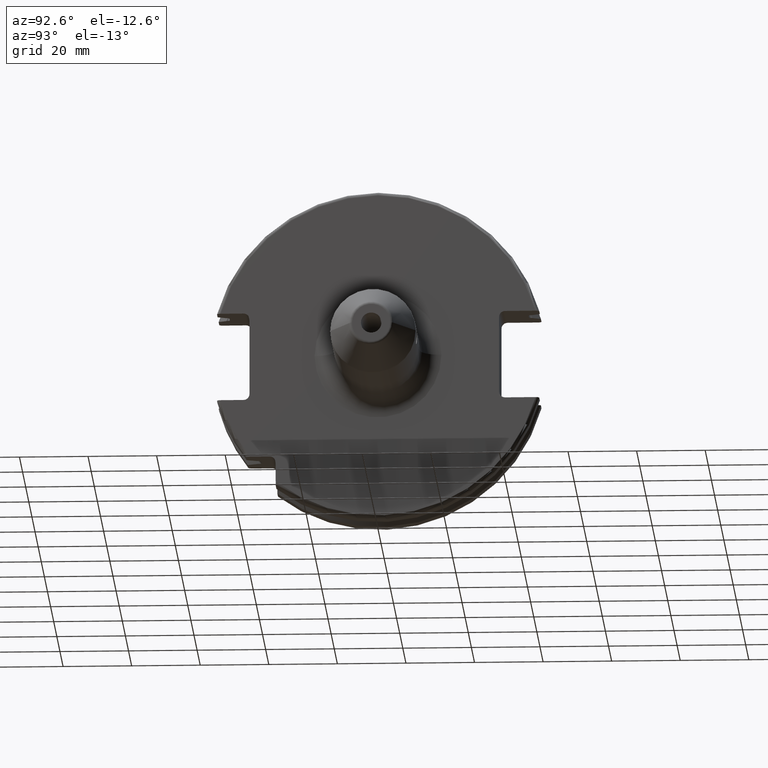
[diagram: clean part render]
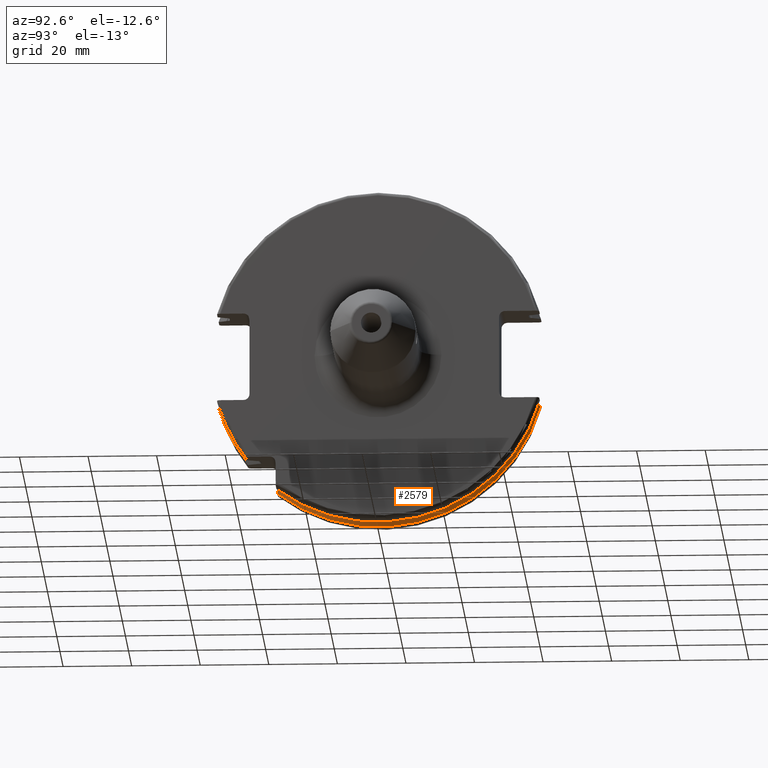
[diagram: same view with one face highlighted and labeled with its STEP entity id]
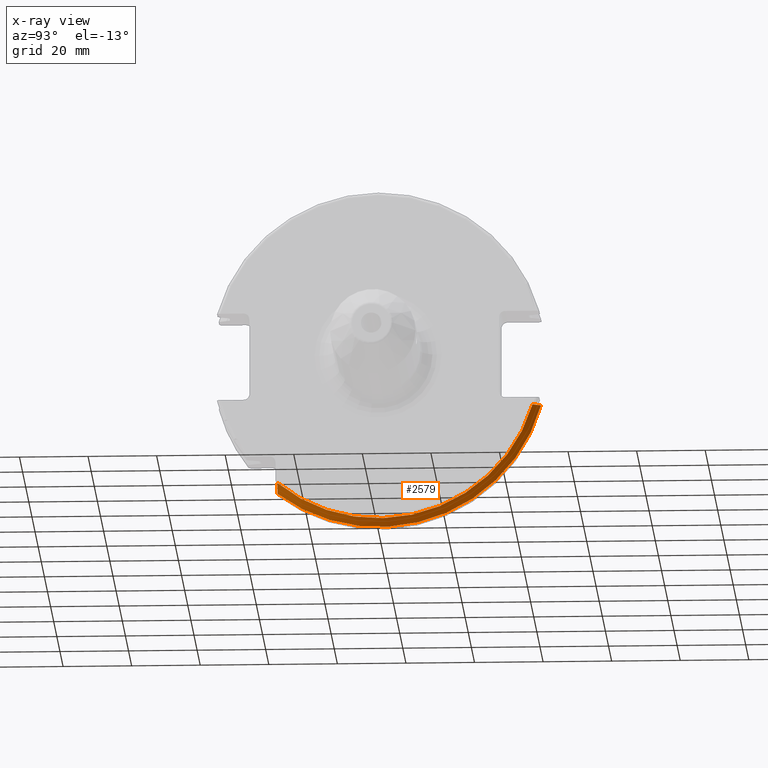
[diagram: x-ray of the same camera — body ghosted, the highlighted face saturated]
A machine part, auxiliary view. The second image highlights one B-rep face of the part: STEP entity #2579.
The next image is the same camera in x-ray: the body ghosted, the highlighted face saturated — about 0% of this face is hidden behind the body in this view.
In plain terms, the highlighted conical surface has half-angle 60 deg.
Its self-contained STEP definition (entity closure, byte-faithful):
#456=CARTESIAN_POINT('',(9.2625E0,0.E0,0.E0));
#457=DIRECTION('',(-1.E0,0.E0,0.E0));
#458=DIRECTION('',(0.E0,9.606411165078E-1,-2.777924499957E-1));
#459=AXIS2_PLACEMENT_3D('',#456,#457,#458);
#816=CARTESIAN_POINT('',(7.934621614173E0,0.E0,0.E0));
#817=DIRECTION('',(1.E0,0.E0,0.E0));
#818=DIRECTION('',(0.E0,-6.124647345473E-1,-7.904979120376E-1));
#819=AXIS2_PLACEMENT_3D('',#816,#817,#818);
#870=CARTESIAN_POINT('',(9.2625E0,4.460981716077E1,-1.29E1));
#871=CARTESIAN_POINT('',(9.118283773553E0,4.486984125009E1,-1.29E1));
#872=CARTESIAN_POINT('',(8.827633549554E0,4.539353719098E1,-1.29E1));
#873=CARTESIAN_POINT('',(8.385043355543E0,4.618996220278E1,-1.29E1));
#874=CARTESIAN_POINT('',(8.085504386120E0,4.672829507383E1,-1.29E1));
#875=CARTESIAN_POINT('',(7.934621614173E0,4.699929686974E1,-1.29E1));
#877=CARTESIAN_POINT('',(9.2625E0,-2.985E1,-3.557278857662E1));
#878=CARTESIAN_POINT('',(9.122796459387E0,-2.985E1,-3.588866659244E1));
#879=CARTESIAN_POINT('',(8.838204990616E0,-2.985E1,-3.652866450573E1));
#880=CARTESIAN_POINT('',(8.396067032347E0,-2.985E1,-3.751242476101E1));
#881=CARTESIAN_POINT('',(8.090246731407E0,-2.985E1,-3.818590359837E1));
#882=CARTESIAN_POINT('',(7.934621614173E0,-2.985E1,-3.852689198793E1));
#1460=CARTESIAN_POINT('',(9.2625E0,4.460981716077E1,-1.29E1));
#1462=VERTEX_POINT('',#1460);
#1504=VERTEX_POINT('',#875);
#1533=CARTESIAN_POINT('',(9.2625E0,-2.985E1,-3.557278857662E1));
#1534=VERTEX_POINT('',#1533);
#1649=VERTEX_POINT('',#882);
#2568=CARTESIAN_POINT('',(8.598560807087E0,0.E0,0.E0));
#2569=DIRECTION('',(-1.E0,0.E0,0.E0));
#2570=DIRECTION('',(0.E0,1.E0,0.E0));
#2571=AXIS2_PLACEMENT_3D('',#2568,#2569,#2570);
#2572=CONICAL_SURFACE('',#2571,4.758752358474E1,6.E1);
#2573=ORIENTED_EDGE('',*,*,#1988,.T.);
#2574=ORIENTED_EDGE('',*,*,#2524,.F.);
#2575=ORIENTED_EDGE('',*,*,#2440,.F.);
#2576=ORIENTED_EDGE('',*,*,#2222,.F.);
#2577=EDGE_LOOP('',(#2573,#2574,#2575,#2576));
#2578=FACE_OUTER_BOUND('',#2577,.F.);
#2579=ADVANCED_FACE('',(#2578),#2572,.T.);
#460=CIRCLE('',#459,4.643754716948E1);
#820=CIRCLE('',#819,4.87375E1);
#876=B_SPLINE_CURVE_WITH_KNOTS('',3,(#870,#871,#872,#873,#874,#875),
.UNSPECIFIED.,.F.,.F.,(4,1,1,4),(0.E0,3.333333333333E-1,6.666666666667E-1,1.E0),
.UNSPECIFIED.);
#883=B_SPLINE_CURVE_WITH_KNOTS('',3,(#877,#878,#879,#880,#881,#882),
.UNSPECIFIED.,.F.,.F.,(4,1,1,4),(0.E0,3.333333333333E-1,6.666666666667E-1,1.E0),
.UNSPECIFIED.);
#1988=EDGE_CURVE('',#1462,#1504,#876,.T.);
#2222=EDGE_CURVE('',#1462,#1534,#460,.T.);
#2440=EDGE_CURVE('',#1534,#1649,#883,.T.);
#2524=EDGE_CURVE('',#1649,#1504,#820,.T.);